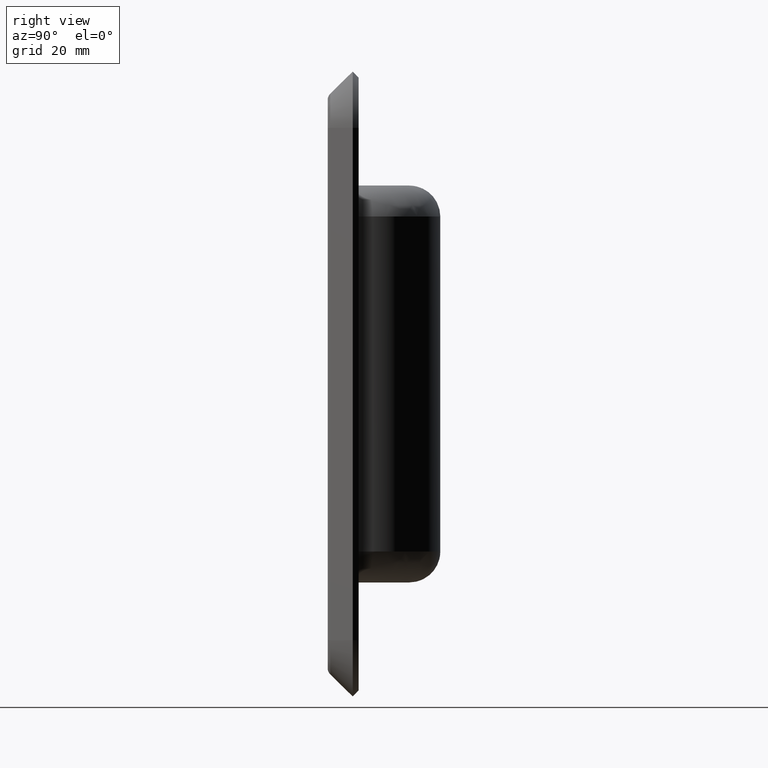
[diagram: clean part render]
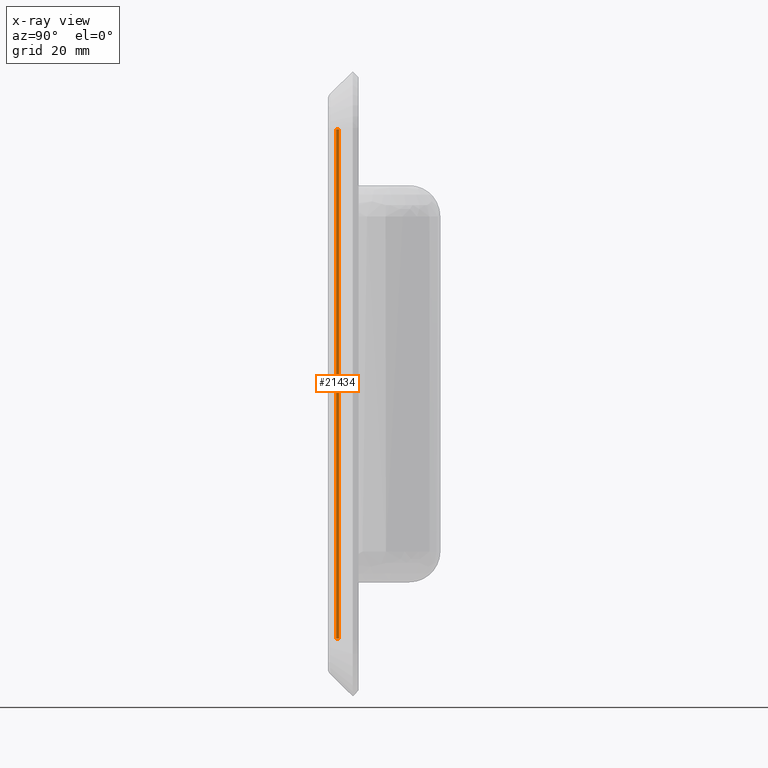
[diagram: x-ray — body ghosted, one internal face saturated and labeled with its STEP entity id]
A machine part, right view, then the same camera in x-ray: the body is ghosted and one INTERNAL B-rep face — a face not visible from any outside direction — is saturated and labeled: STEP entity #21434.
In plain terms, the highlighted face is a freeform B-spline surface patch.
Its self-contained STEP definition (entity closure, byte-faithful):
#19611=CARTESIAN_POINT('',(59.250000000000000,-3.499985000000000,-45.250000000000000));
#19612=VERTEX_POINT('',#19611);
#19628=CARTESIAN_POINT('',(59.250000000000000,-3.999985000000000,-45.250000000000000));
#19629=VERTEX_POINT('',#19628);
#19630=CARTESIAN_POINT('',(59.250000000000000,-3.999985000000000,-45.250000000000000));
#19631=CARTESIAN_POINT('',(59.250000000000000,-3.499985000000000,-45.250000000000000));
#19632=QUASI_UNIFORM_CURVE('',1,(#19630,#19631),.UNSPECIFIED.,.F.,.U.);
#19633=EDGE_CURVE('',#19629,#19612,#19632,.T.);
#19674=CARTESIAN_POINT('',(59.250000000000000,-3.499985000000000,45.250000000000000));
#19675=VERTEX_POINT('',#19674);
#19696=CARTESIAN_POINT('',(59.250000000000000,-3.999985000000000,45.250000000000000));
#19697=VERTEX_POINT('',#19696);
#19711=CARTESIAN_POINT('',(59.250000000000000,-3.499985000000000,45.250000000000000));
#19712=CARTESIAN_POINT('',(59.250000000000000,-3.999985000000000,45.250000000000000));
#19713=QUASI_UNIFORM_CURVE('',1,(#19711,#19712),.UNSPECIFIED.,.F.,.U.);
#19714=EDGE_CURVE('',#19675,#19697,#19713,.T.);
#21415=CARTESIAN_POINT('',(59.250000000000000,-4.024959980256334,49.770474824593443));
#21416=CARTESIAN_POINT('',(59.250000000000000,-4.024959980256334,-49.770477251992602));
#21417=CARTESIAN_POINT('',(59.250000000000000,-3.475009988451228,49.770474824593443));
#21418=CARTESIAN_POINT('',(59.250000000000000,-3.475009988451228,-49.770477251992602));
#21419=B_SPLINE_SURFACE_WITH_KNOTS('',1,1,((#21415,#21417),(#21416,#21418)),.UNSPECIFIED.,.F.,.F.,.U.,(2,2),(2,2),(0.0,99.540952076586024),(0.041708366239443,0.958291685914621),.UNSPECIFIED.);
#21420=CARTESIAN_POINT('',(59.250000000000000,-3.499985000000000,-45.250000000000000));
#21421=CARTESIAN_POINT('',(59.250000000000000,-3.499985000000000,45.250000000000000));
#21422=QUASI_UNIFORM_CURVE('',1,(#21420,#21421),.UNSPECIFIED.,.F.,.U.);
#21423=EDGE_CURVE('',#19612,#19675,#21422,.T.);
#21424=ORIENTED_EDGE('',*,*,#21423,.T.);
#21425=ORIENTED_EDGE('',*,*,#19714,.T.);
#21426=CARTESIAN_POINT('',(59.250000000000000,-3.999985000000000,-45.250000000000000));
#21427=CARTESIAN_POINT('',(59.250000000000000,-3.999985000000000,45.250000000000000));
#21428=QUASI_UNIFORM_CURVE('',1,(#21426,#21427),.UNSPECIFIED.,.F.,.U.);
#21429=EDGE_CURVE('',#19629,#19697,#21428,.T.);
#21430=ORIENTED_EDGE('',*,*,#21429,.F.);
#21431=ORIENTED_EDGE('',*,*,#19633,.T.);
#21432=EDGE_LOOP('',(#21424,#21425,#21430,#21431));
#21433=FACE_OUTER_BOUND('',#21432,.T.);
#21434=ADVANCED_FACE('',(#21433),#21419,.T.);